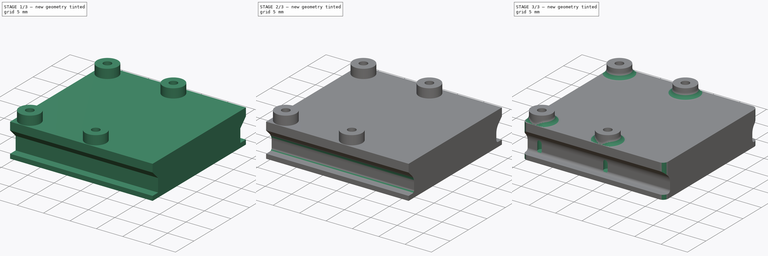
[diagram: build sequence overview — one tinted view per stage of 3, left to right]
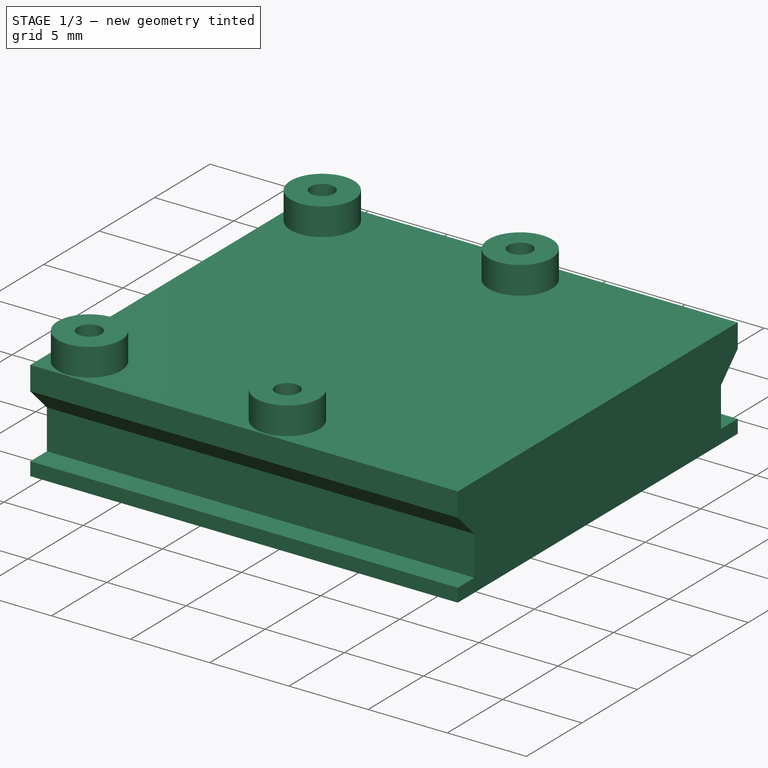
[diagram: stage 1 of 3 — iso view after this stage's code; geometry added in this stage tinted green]
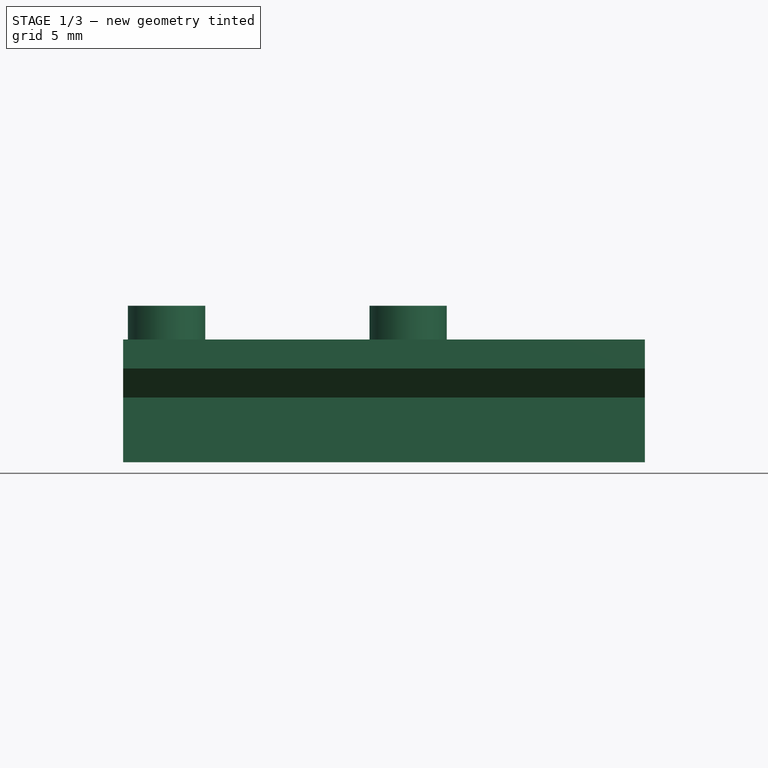
[diagram: stage 1 of 3 — front view after this stage's code; geometry added in this stage tinted green]
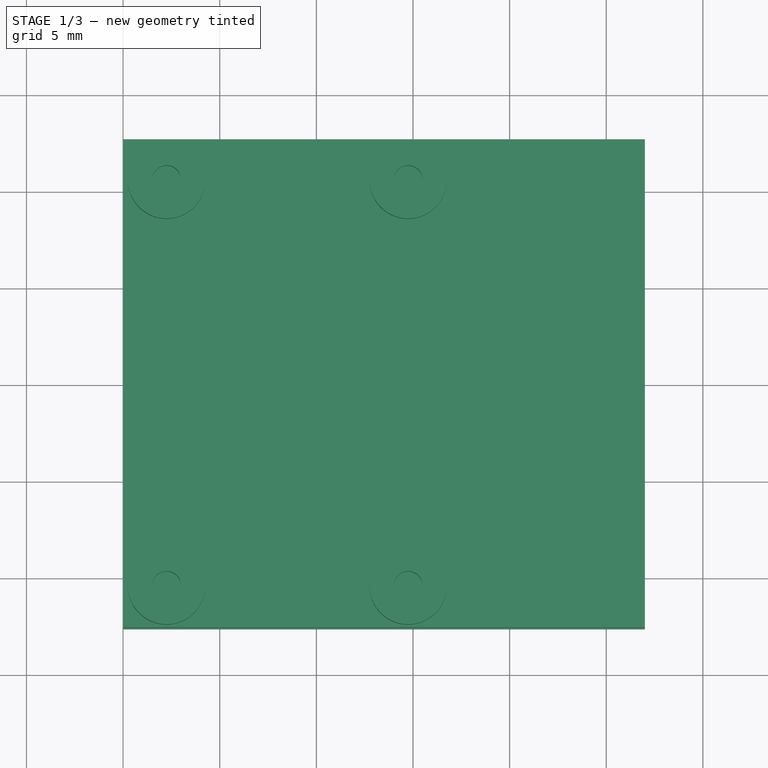
[diagram: stage 1 of 3 — top view after this stage's code; geometry added in this stage tinted green]
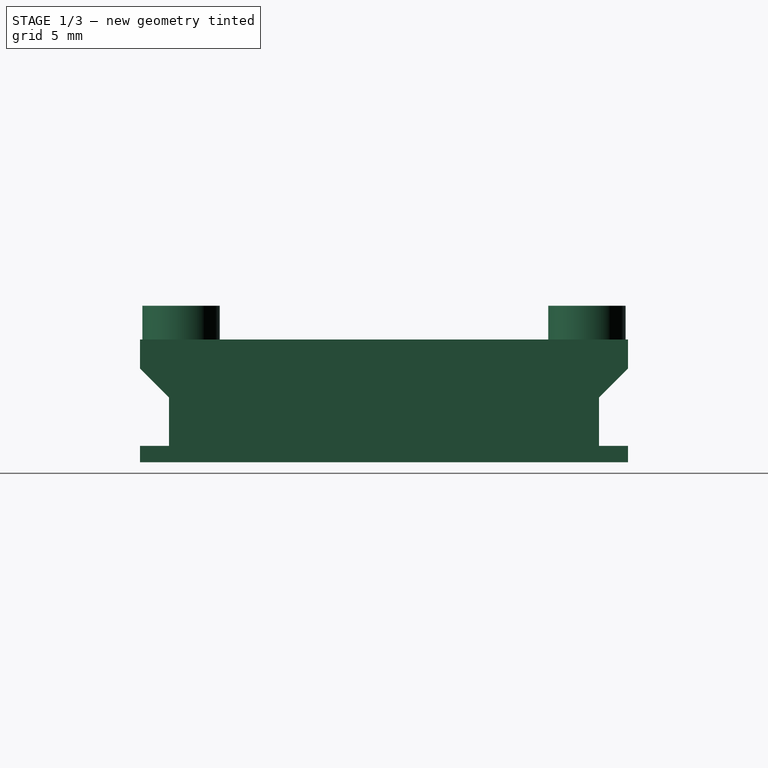
[diagram: stage 1 of 3 — right view after this stage's code; geometry added in this stage tinted green]
FCSTD DOCUMENT  (FreeCAD 0.15R4671 (Git))
Label: picamadapter
License: All rights reserved
LicenseURL: http://en.wikipedia.org/wiki/All_rights_reserved
objects: PartDesign::Fillet×4, Sketcher::SketchObject×3, PartDesign::Pad×2, PartDesign::Mirrored×1, PartDesign::Pocket×1
note: 14 computed .brp shape members not serialized (recipe doc carries the construction recipe); baked Part::Feature solids carry a one-line shape summary decoded from their .brp

FEATURE [Sketcher::SketchObject] Sketch001
  Placement = pos=(0,0,0) rot=(0.57735,0.57735,0.57735;2.0944rad)
  sketch-geometry (8):
    g0: LineSegment StartX=0 StartY=0 StartZ=0 EndX=-12.625 EndY=0 EndZ=0
    g1: LineSegment StartX=-12.625 StartY=0 StartZ=0 EndX=-12.625 EndY=0.85 EndZ=0
    g2: LineSegment StartX=-12.625 StartY=0.85 StartZ=0 EndX=-11.125 EndY=0.85 EndZ=0
    g3: LineSegment StartX=-11.125 StartY=0.85 StartZ=0 EndX=-11.125 EndY=3.35 EndZ=0
    g4: LineSegment StartX=-11.125 StartY=3.35 StartZ=0 EndX=-12.625 EndY=4.85 EndZ=0
    g5: LineSegment StartX=-12.625 StartY=4.85 StartZ=0 EndX=-12.625 EndY=6.35 EndZ=0
    g6: LineSegment StartX=-12.625 StartY=6.35 StartZ=0 EndX=0 EndY=6.35 EndZ=0
    g7: LineSegment StartX=0 StartY=0 StartZ=0 EndX=0 EndY=6.35 EndZ=0
  constraints (23):
    c: Coincident(g0,g-1)
    c: PointOnObject(g0,g-1)
    c: Distance(g0) = 12.625
    c: Coincident(g1,g0)
    c: Vertical(g1)
    c: Horizontal(g2)
    c: Coincident(g1,g2)
    c: Coincident(g3,g2)
    c: Vertical(g3)
    c: Coincident(g4,g3)
    c: PointOnObject(g4,g1)
    c: Distance(g1) = 0.85
    c: Distance(g2) = 1.5
    c: Angle(g4,g3) = 2.35619
    c: Coincident(g5,g4)
    c: Vertical(g5)
    c: Coincident(g6,g5)
    c: Horizontal(g6)
    c: Coincident(g7,g-1)
    c: Vertical(g7)
    c: Coincident(g7,g6)
    c: Distance(g4,g6) = 1.5
    c: Distance(g3) = 2.5
FEATURE [PartDesign::Pad] Pad
  Length = 27
  Length2 = 100
  Placement = pos=(0,0,0) rot=(0.57735,0.57735,0.57735;2.0944rad)
  Sketch = -> Sketch001
  Type = 0
FEATURE [PartDesign::Mirrored] Mirrored
  MirrorPlane = -> Sketch001 [V_Axis]
  Originals = -> [Pad]
  Placement = pos=(0,0,0) rot=(0.57735,0.57735,0.57735;2.0944rad)
FEATURE [Sketcher::SketchObject] Sketch
  Placement = pos=(0,0,6.35) rot=(0,0,-1;1.5708rad)
  Support = -> Mirrored [Face9]
  sketch-geometry (15):
    g0: LineSegment [constr] StartX=-10.5 StartY=14.75 StartZ=0 EndX=10.5 EndY=14.75 EndZ=0
    g1: LineSegment [constr] StartX=10.5 StartY=14.75 StartZ=0 EndX=10.5 EndY=2.25 EndZ=0
    g2: LineSegment [constr] StartX=10.5 StartY=2.25 StartZ=0 EndX=-10.5 EndY=2.25 EndZ=0
    g3: LineSegment [constr] StartX=-10.5 StartY=2.25 StartZ=0 EndX=-10.5 EndY=14.75 EndZ=0
    g4: LineSegment [constr] StartX=0 StartY=0 StartZ=0 EndX=0 EndY=8.5 EndZ=0
    g5: LineSegment [constr] StartX=-10.5 StartY=14.75 StartZ=0 EndX=10.5 EndY=2.25 EndZ=0
    g6: LineSegment [constr] StartX=-10.5 StartY=2.25 StartZ=0 EndX=10.5 EndY=14.75 EndZ=0
    g7: Circle CenterX=-10.5 CenterY=14.75 CenterZ=0 NormalX=0 NormalY=0 NormalZ=1 Radius=2
    g8: Circle CenterX=-10.5 CenterY=14.75 CenterZ=0 NormalX=0 NormalY=0 NormalZ=1 Radius=0.75
    g9: Circle CenterX=-10.5 CenterY=2.25 CenterZ=0 NormalX=0 NormalY=0 NormalZ=1 Radius=2
    g10: Circle CenterX=-10.5 CenterY=2.25 CenterZ=0 NormalX=0 NormalY=0 NormalZ=1 Radius=0.75
    g11: Circle CenterX=10.5 CenterY=2.25 CenterZ=0 NormalX=0 NormalY=0 NormalZ=1 Radius=2
    g12: Circle CenterX=10.5 CenterY=2.25 CenterZ=0 NormalX=0 NormalY=0 NormalZ=1 Radius=0.75
    g13: Circle CenterX=10.5 CenterY=14.75 CenterZ=0 NormalX=0 NormalY=0 NormalZ=1 Radius=2
    g14: Circle CenterX=10.5 CenterY=14.75 CenterZ=0 NormalX=0 NormalY=0 NormalZ=1 Radius=0.75
  constraints (35):
    c: Coincident(g0,g1)
    c: Coincident(g1,g2)
    c: Coincident(g2,g3)
    c: Coincident(g3,g0)
    c: Horizontal(g0)
    c: Horizontal(g2)
    c: Vertical(g1)
    c: Vertical(g3)
    c: Distance(g0) = 21
    c: Distance(g3) = 12.5
    c: Coincident(g4,g-1)
    c: PointOnObject(g4,g-2)
    c: Distance(g4) = 8.5
    c: Coincident(g5,g0)
    c: Coincident(g5,g1)
    c: PointOnObject(g4,g5)
    c: Coincident(g6,g2)
    c: Coincident(g6,g0)
    c: PointOnObject(g4,g6)
    c: Coincident(g7,g0)
    c: Coincident(g8,g0)
    c: Radius(g8) = 0.75
    c: Radius(g7) = 2
    c: Coincident(g9,g2)
    c: Coincident(g10,g2)
    c: Equal(g10,g8)
    c: Equal(g9,g7)
    c: Coincident(g11,g1)
    c: Coincident(g12,g1)
    c: Coincident(g13,g0)
    c: Coincident(g14,g0)
    c: Equal(g14,g10)
    c: Equal(g10,g12)
    c: Equal(g13,g11)
    c: Equal(g11,g9)
FEATURE [PartDesign::Pad] Pad001
  Length = 1.75
  Length2 = 100
  Placement = pos=(0,0,0) rot=(0.57735,0.57735,0.57735;2.0944rad)
  Sketch = -> Sketch
  Type = 0
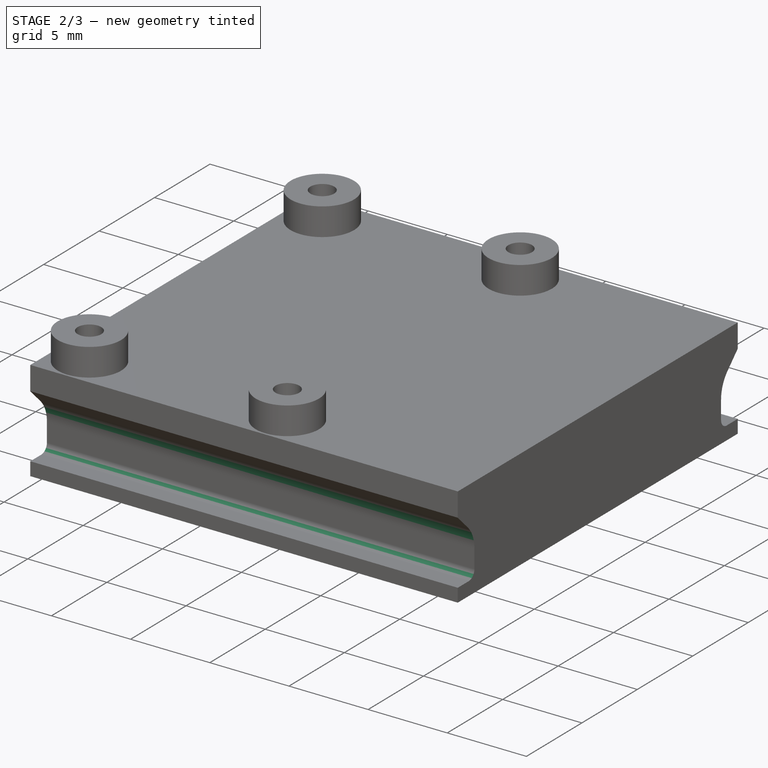
[diagram: stage 2 of 3 — iso view after this stage's code; geometry added in this stage tinted green]
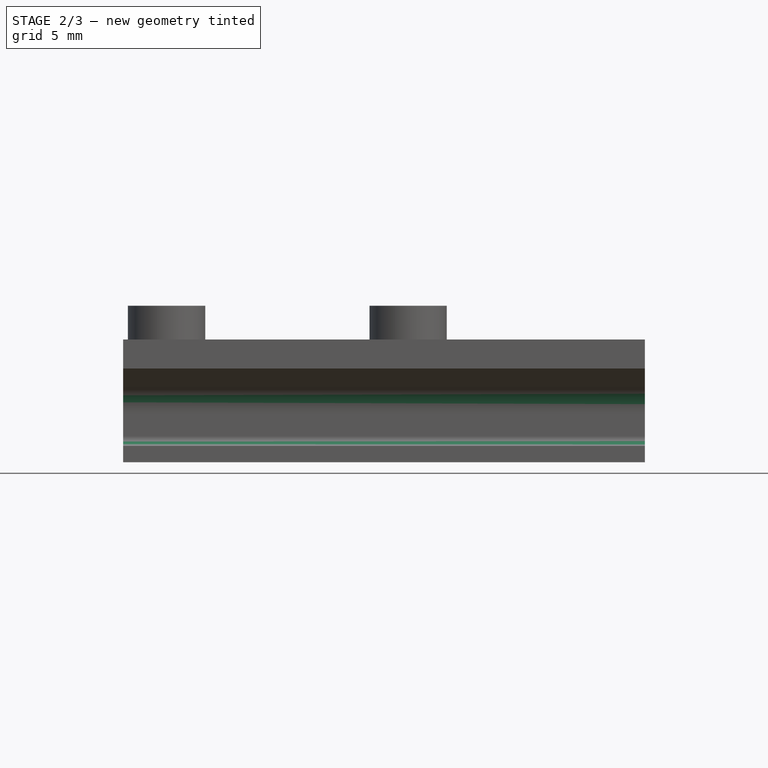
[diagram: stage 2 of 3 — front view after this stage's code; geometry added in this stage tinted green]
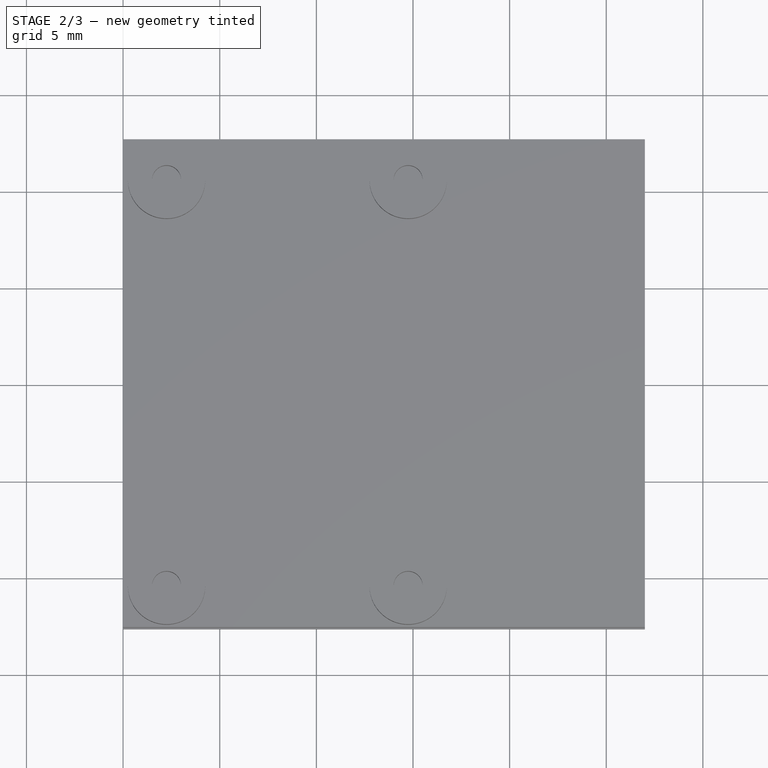
[diagram: stage 2 of 3 — top view after this stage's code; geometry added in this stage tinted green]
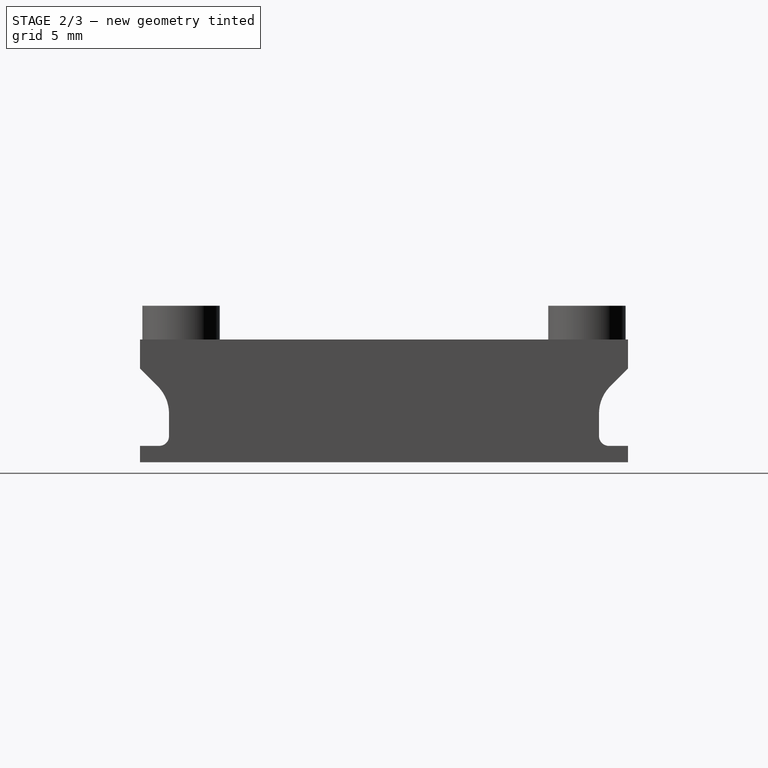
[diagram: stage 2 of 3 — right view after this stage's code; geometry added in this stage tinted green]
FEATURE [PartDesign::Fillet] Fillet
  Base = -> Pad001 [Edge46,Edge8]
  Placement = pos=(0,0,0) rot=(0.57735,0.57735,0.57735;2.0944rad)
  Radius = 0.5
FEATURE [PartDesign::Fillet] Fillet001
  Base = -> Fillet [Edge50,Edge23]
  Placement = pos=(0,0,0) rot=(0.57735,0.57735,0.57735;2.0944rad)
  Radius = 2
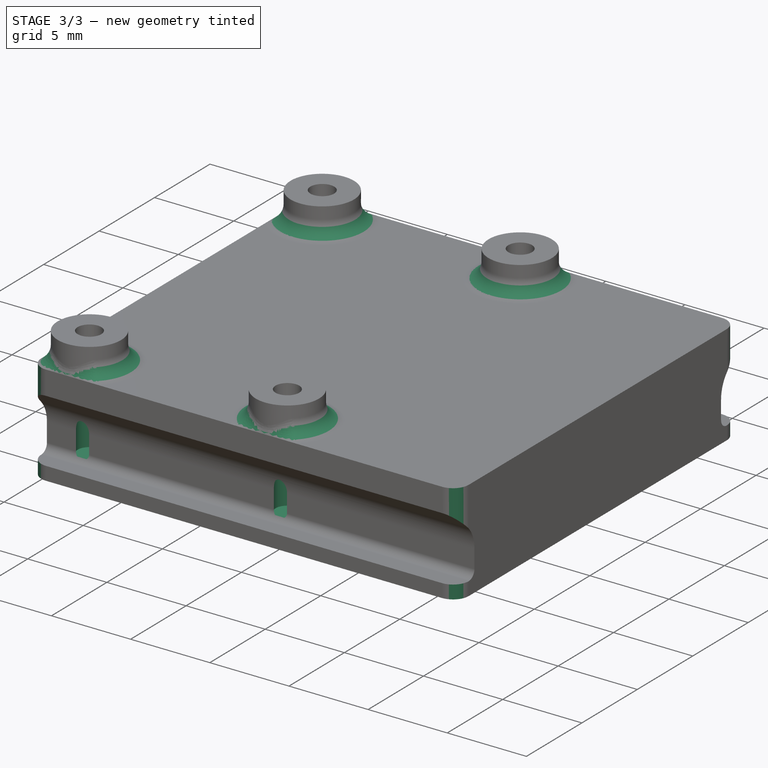
[diagram: stage 3 of 3 — iso view after this stage's code; geometry added in this stage tinted green]
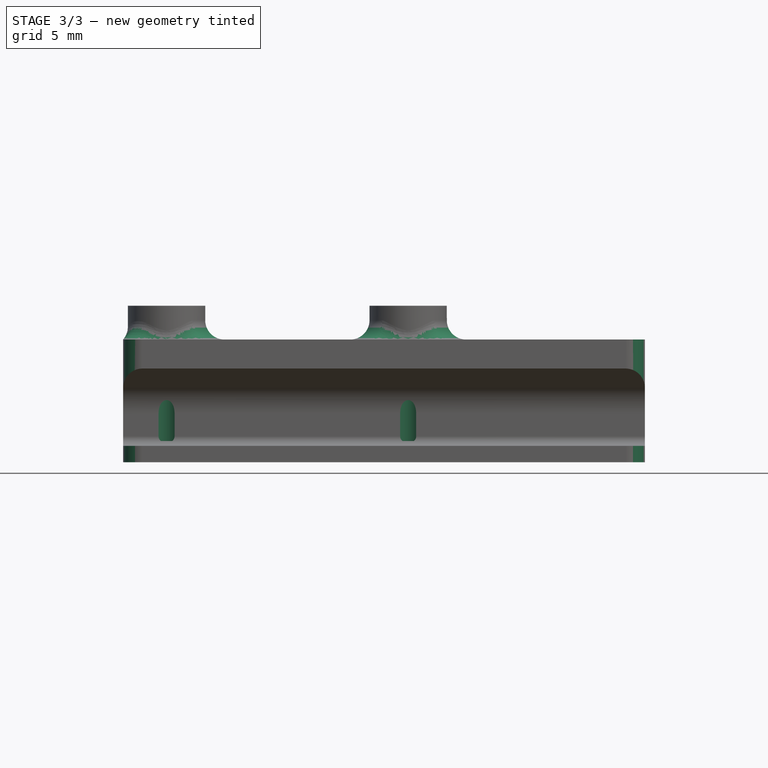
[diagram: stage 3 of 3 — front view after this stage's code; geometry added in this stage tinted green]
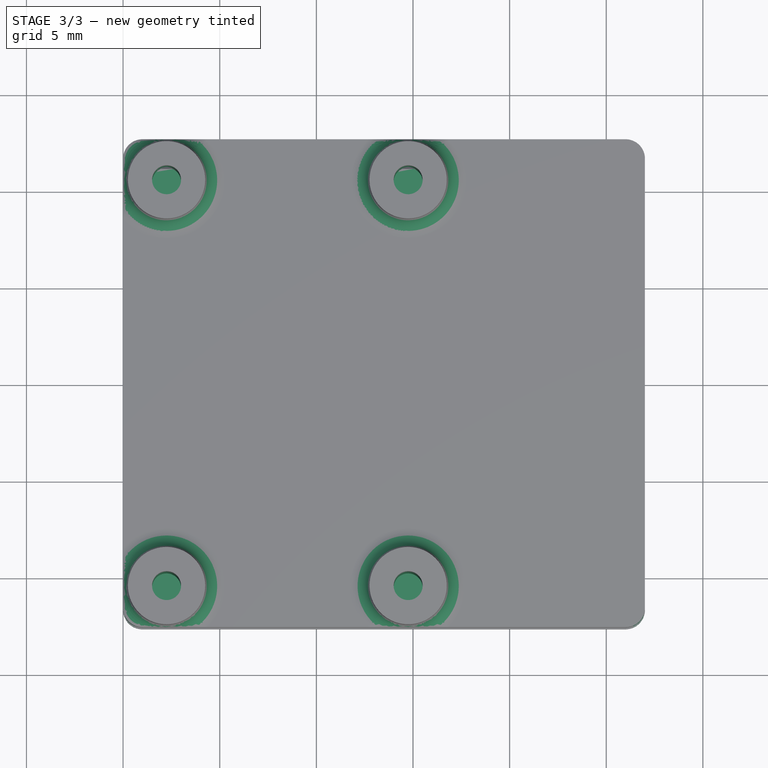
[diagram: stage 3 of 3 — top view after this stage's code; geometry added in this stage tinted green]
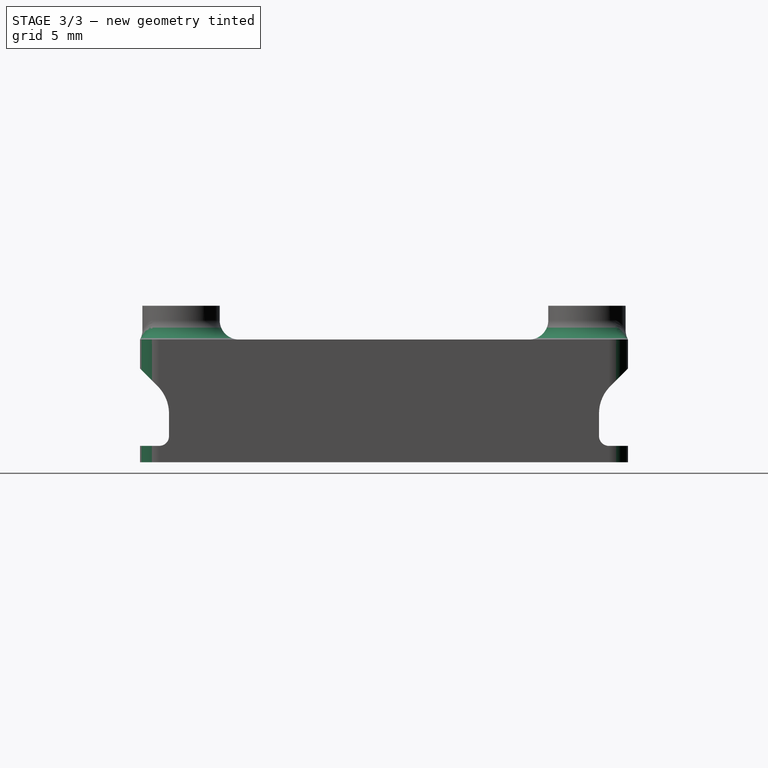
[diagram: stage 3 of 3 — right view after this stage's code; geometry added in this stage tinted green]
FEATURE [PartDesign::Fillet] Fillet002
  Base = -> Fillet001 [Edge37,Edge38,Edge63,Edge64,Edge23,Edge25,Edge6,Edge7]
  Placement = pos=(0,0,0) rot=(0.57735,0.57735,0.57735;2.0944rad)
  Radius = 1
FEATURE [PartDesign::Fillet] Fillet003  label="fillet"
  Base = -> Fillet002 [Edge23,Edge24,Edge51,Edge52]
  Placement = pos=(0,0,0) rot=(0.57735,0.57735,0.57735;2.0944rad)
  Radius = 1
FEATURE [Sketcher::SketchObject] Sketch003
  ExternalGeometry = -> [Fillet003]
  Placement = pos=(0,0,8.1) rot=(0,0,-1;1.5708rad)
  Support = -> Fillet003 [Face42]
  sketch-geometry (4):
    g0: Circle CenterX=-10.5 CenterY=14.75 CenterZ=0 NormalX=0 NormalY=0 NormalZ=1 Radius=0.75
    g1: Circle CenterX=10.5 CenterY=14.75 CenterZ=0 NormalX=0 NormalY=0 NormalZ=1 Radius=0.75
    g2: Circle CenterX=10.5 CenterY=2.25 CenterZ=0 NormalX=0 NormalY=0 NormalZ=1 Radius=0.75
    g3: Circle CenterX=-10.5 CenterY=2.25 CenterZ=0 NormalX=0 NormalY=0 NormalZ=1 Radius=0.75
  constraints (8):
    c: Coincident(g0,g-3)
    c: Coincident(g1,g-4)
    c: Coincident(g2,g-5)
    c: Coincident(g3,g-6)
    c: Equal(g0,g1)
    c: Equal(g1,g2)
    c: Equal(g2,g3)
    c: Radius(g0) = 0.75
FEATURE [PartDesign::Pocket] Pocket
  Length = 7
  Placement = pos=(0,0,0) rot=(0.57735,0.57735,0.57735;2.0944rad)
  Sketch = -> Sketch003
  Type = 0
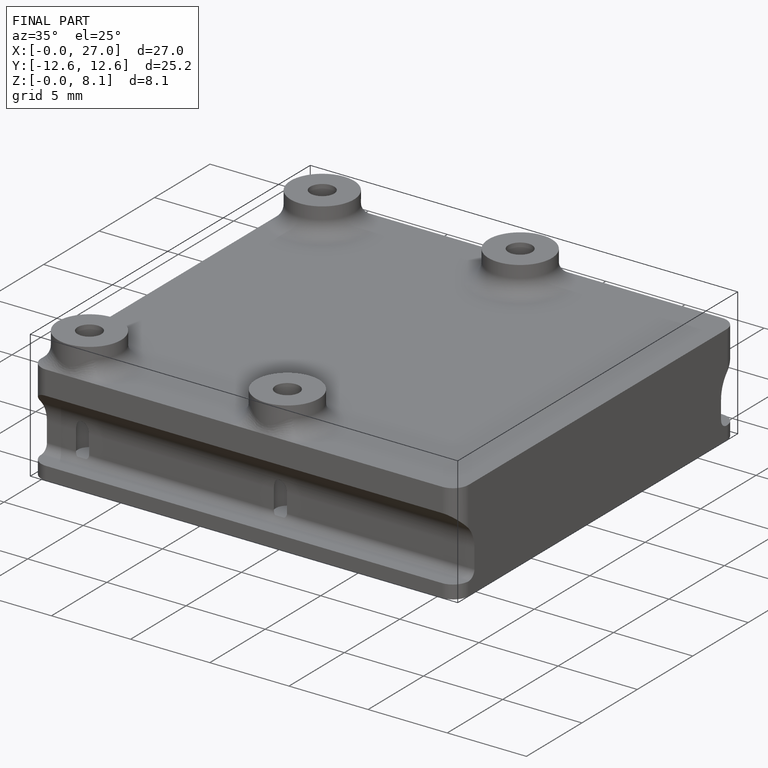
[diagram: finished part — iso view with bounding-box wireframe]
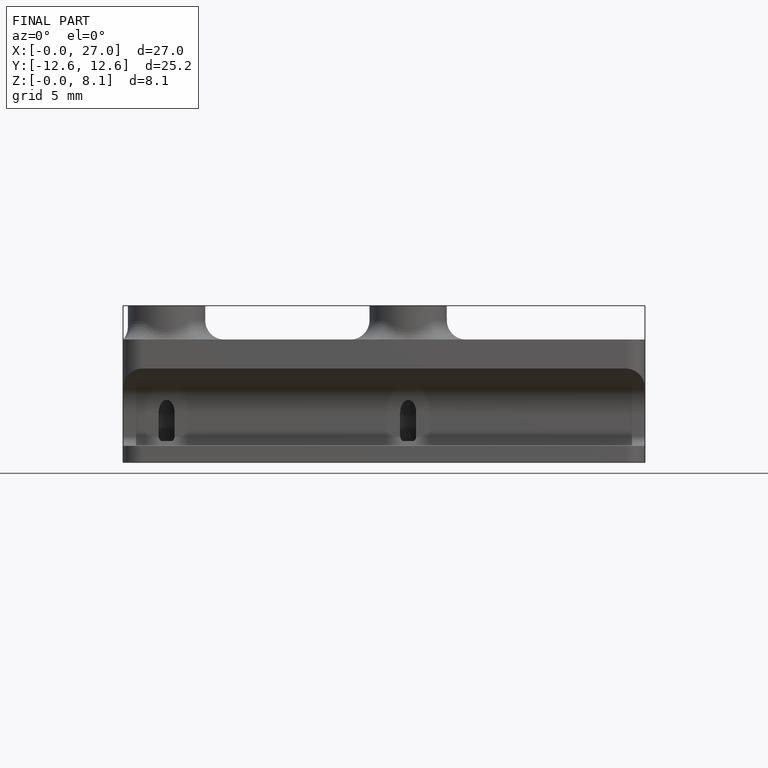
[diagram: finished part — front view with bounding-box wireframe]
